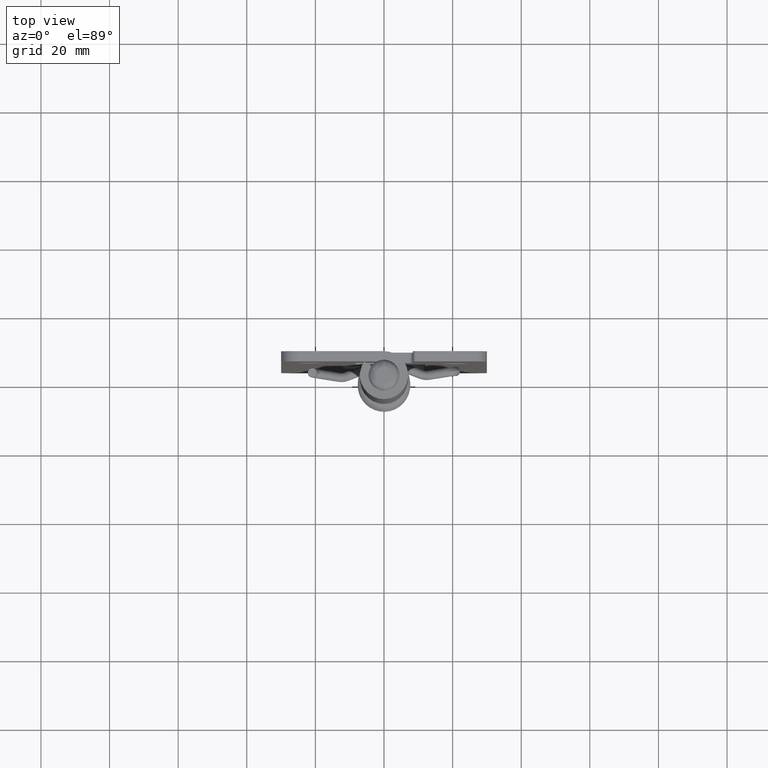
[diagram: clean part render]
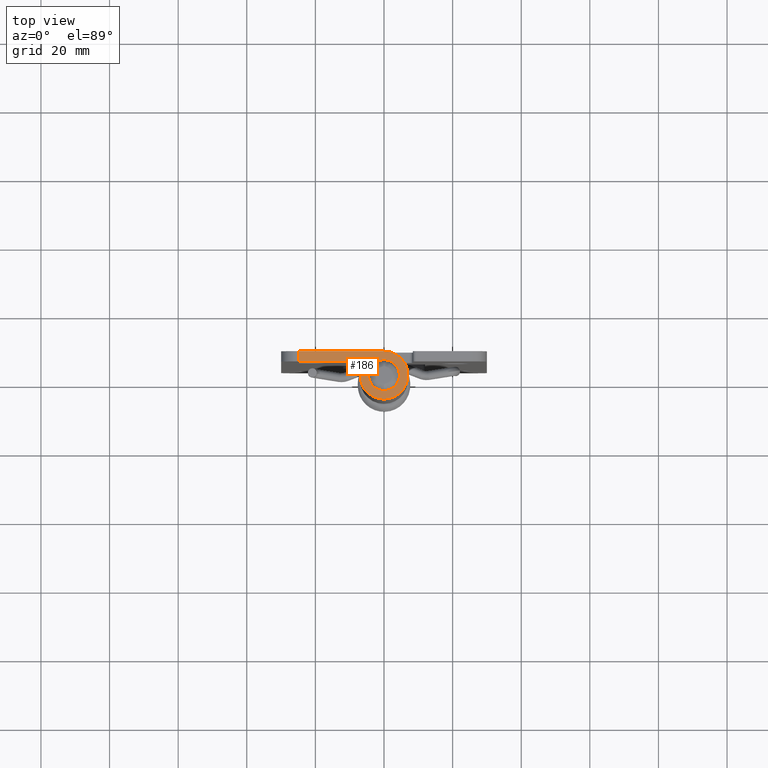
[diagram: same view with one face highlighted and labeled with its STEP entity id]
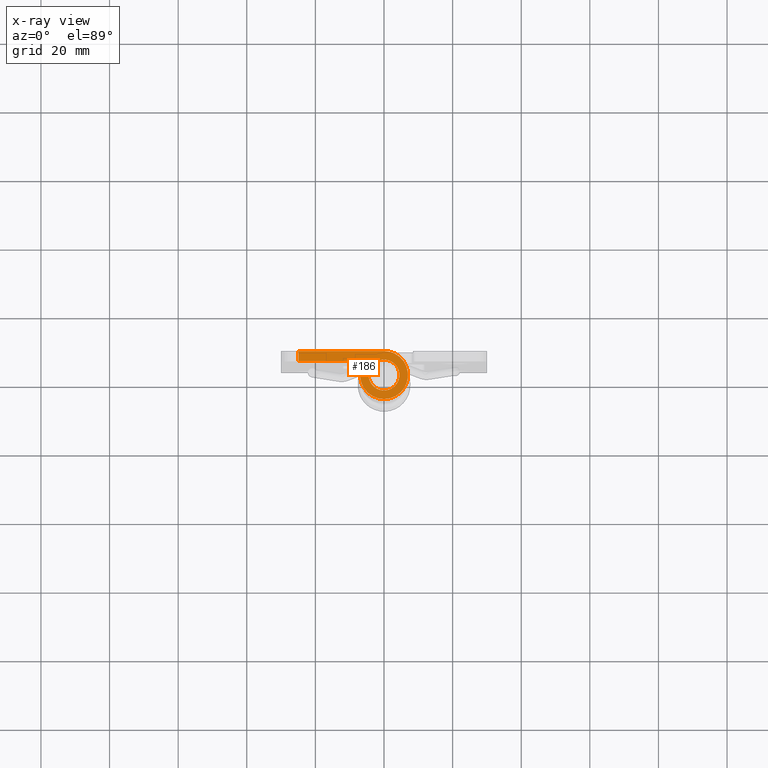
[diagram: x-ray of the same camera — body ghosted, the highlighted face saturated]
A machine part, top view. The second image highlights one B-rep face of the part: STEP entity #186.
The next image is the same camera in x-ray: the body ghosted, the highlighted face saturated — about 0% of this face is hidden behind the body in this view.
In plain terms, the highlighted planar face has unit normal (0, 0, -1).
Its self-contained STEP definition (entity closure, byte-faithful):
#186=ADVANCED_FACE('',(#626),#625,.F.);
#625=PLANE('',#2929);
#626=FACE_OUTER_BOUND('',#2930,.T.);
#2926=CARTESIAN_POINT('',(-1.19433706026E+01,0.00000000000E+00,-8.68182746121E+00));
#2927=DIRECTION('',(-0.00000000000E+00,1.00000000000E+00,0.00000000000E+00));
#2928=DIRECTION('',(0.00000000000E+00,0.00000000000E+00,1.00000000000E+00));
#2929=AXIS2_PLACEMENT_3D('',#2926,#2927,#2928);
#2930=EDGE_LOOP('',(#3545,#3546,#3547,#3548,#3549,#3550,#3551,#3552));
#3545=ORIENTED_EDGE('',*,*,#4041,.F.);
#3546=ORIENTED_EDGE('',*,*,#4042,.F.);
#3547=ORIENTED_EDGE('',*,*,#4043,.F.);
#3548=ORIENTED_EDGE('',*,*,#4044,.F.);
#3549=ORIENTED_EDGE('',*,*,#4045,.T.);
#3550=ORIENTED_EDGE('',*,*,#4007,.F.);
#3551=ORIENTED_EDGE('',*,*,#4046,.T.);
#3552=ORIENTED_EDGE('',*,*,#4047,.F.);
#4007=EDGE_CURVE('',#4749,#4756,#4757,.T.);
#4041=EDGE_CURVE('',#4989,#4990,#4991,.T.);
#4042=EDGE_CURVE('',#4997,#4989,#4998,.T.);
#4043=EDGE_CURVE('',#5004,#4997,#5005,.T.);
#4044=EDGE_CURVE('',#5011,#5004,#5012,.T.);
#4045=EDGE_CURVE('',#5011,#4756,#5018,.T.);
#4046=EDGE_CURVE('',#4749,#5024,#5025,.T.);
#4047=EDGE_CURVE('',#4990,#5024,#5031,.T.);
#4749=VERTEX_POINT('',#6735);
#4756=VERTEX_POINT('',#6740);
#4757=LINE('',#6741,#6742);
#4989=VERTEX_POINT('',#6885);
#4990=VERTEX_POINT('',#6886);
#4991=CIRCLE('',#6890,4.50000000000E+00);
#4997=VERTEX_POINT('',#6891);
#4998=CIRCLE('',#6895,4.50000000000E+00);
#5004=VERTEX_POINT('',#6896);
#5005=CIRCLE('',#6900,4.50000000000E+00);
#5011=VERTEX_POINT('',#6901);
#5012=LINE('',#6902,#6903);
#5018=CIRCLE('',#6908,7.00000000000E+00);
#5024=VERTEX_POINT('',#6909);
#5025=LINE('',#6910,#6911);
#5031=LINE('',#6913,#6914);
#6735=CARTESIAN_POINT('',(2.50000000000E+01,0.00000000000E+00,-7.00000000000E+00));
#6740=CARTESIAN_POINT('',(-1.42108547152E-14,0.00000000000E+00,-7.00000000000E+00));
#6741=CARTESIAN_POINT('',(2.50000000000E+01,0.00000000000E+00,-7.00000000000E+00));
#6742=VECTOR('',#6743,2.50000000000E+01);
#6743=DIRECTION('',(-1.00000000000E+00,0.00000000000E+00,1.32871491587E-14));
#6885=CARTESIAN_POINT('',(-1.55491667847E-03,0.00000000000E+00,-4.49999973136E+00));
#6886=CARTESIAN_POINT('',(2.06155281281E+00,0.00000000000E+00,-4.00000000000E+00));
#6887=CARTESIAN_POINT('',(1.43114686768E-14,0.00000000000E+00,0.00000000000E+00));
#6888=DIRECTION('',(0.00000000000E+00,-1.00000000000E+00,-0.00000000000E+00));
#6889=DIRECTION('',(4.58122847291E-01,0.00000000000E+00,-8.88888888889E-01));
#6890=AXIS2_PLACEMENT_3D('',#6887,#6888,#6889);
#6891=CARTESIAN_POINT('',(-5.99285164613E-12,0.00000000000E+00,4.50000000000E+00));
#6892=CARTESIAN_POINT('',(1.43114686768E-14,0.00000000000E+00,0.00000000000E+00));
#6893=DIRECTION('',(0.00000000000E+00,-1.00000000000E+00,-0.00000000000E+00));
#6894=DIRECTION('',(4.58122847291E-01,0.00000000000E+00,-8.88888888889E-01));
#6895=AXIS2_PLACEMENT_3D('',#6892,#6893,#6894);
#6896=CARTESIAN_POINT('',(3.69338187262E+00,0.00000000000E+00,-2.57078399385E+00));
#6897=CARTESIAN_POINT('',(1.43114686768E-14,0.00000000000E+00,0.00000000000E+00));
#6898=DIRECTION('',(0.00000000000E+00,-1.00000000000E+00,-0.00000000000E+00));
#6899=DIRECTION('',(4.58122847291E-01,0.00000000000E+00,-8.88888888889E-01));
#6900=AXIS2_PLACEMENT_3D('',#6897,#6898,#6899);
#6901=CARTESIAN_POINT('',(5.74526069074E+00,0.00000000000E+00,-3.99899732376E+00));
#6902=CARTESIAN_POINT('',(5.74526069074E+00,0.00000000000E+00,-3.99899732376E+00));
#6903=VECTOR('',#6904,2.50000000000E+00);
#6904=DIRECTION('',(-8.20751527249E-01,0.00000000000E+00,5.71285331966E-01));
#6905=CARTESIAN_POINT('',(0.00000000000E+00,0.00000000000E+00,-1.95399252334E-14));
#6906=DIRECTION('',(0.00000000000E+00,-1.00000000000E+00,0.00000000000E+00));
#6907=DIRECTION('',(-0.00000000000E+00,-0.00000000000E+00,-1.00000000000E+00));
#6908=AXIS2_PLACEMENT_3D('',#6905,#6906,#6907);
#6909=CARTESIAN_POINT('',(2.50000000000E+01,0.00000000000E+00,-4.00000000000E+00));
#6910=CARTESIAN_POINT('',(2.50000000000E+01,0.00000000000E+00,-7.00000000000E+00));
#6911=VECTOR('',#6912,3.00000000000E+00);
#6912=DIRECTION('',(0.00000000000E+00,0.00000000000E+00,1.00000000000E+00));
#6913=CARTESIAN_POINT('',(2.06155281281E+00,0.00000000000E+00,-4.00000000000E+00));
#6914=VECTOR('',#6915,2.29384471872E+01);
#6915=DIRECTION('',(1.00000000000E+00,0.00000000000E+00,7.74401521125E-17));